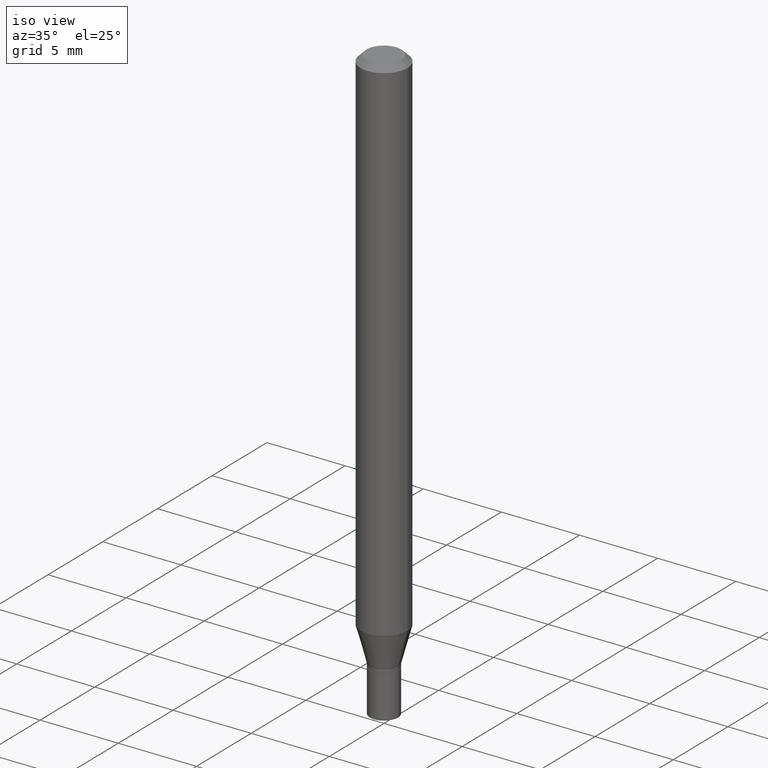
[diagram: clean part render]
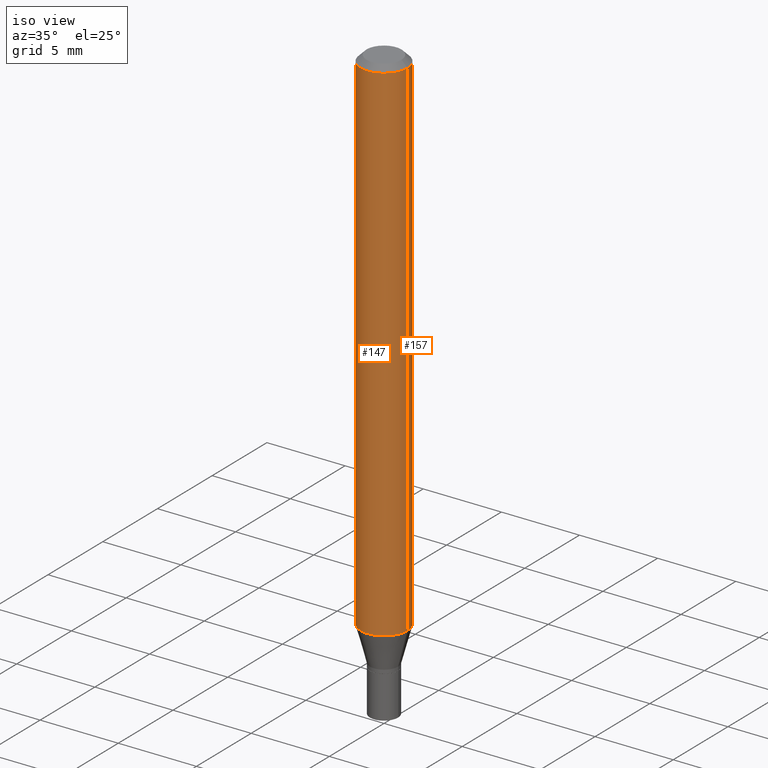
[diagram: same view with one multi-face feature highlighted, each face labeled with its STEP entity id]
A machine part, iso view. The highlighted faces form ONE feature: a constant-radius fillet chain: 2 tangent blend faces with common blend radius 1.4999 mm. The faces share edges in the B-rep.
Their STEP definitions:
[1] entity #147 (Cylinder):
#4 = ORIENTED_EDGE ( 'NONE', *, *, #176, .T. ) ;
#16 = AXIS2_PLACEMENT_3D ( 'NONE', #307, #406, #268 ) ;
#29 = CARTESIAN_POINT ( 'NONE',  ( 3.169140741301243022E-29, -4.524693069253216153E-15, -1.295923600941373044 ) ) ;
#35 = VERTEX_POINT ( 'NONE', #301 ) ;
#39 = EDGE_LOOP ( 'NONE', ( #246, #4, #323, #77 ) ) ;
#43 = VERTEX_POINT ( 'NONE', #125 ) ;
#77 = ORIENTED_EDGE ( 'NONE', *, *, #396, .F. ) ;
#111 = VERTEX_POINT ( 'NONE', #151 ) ;
#117 = CIRCLE ( 'NONE', #16, 0.05904999999999999832 ) ;
#118 = DIRECTION ( 'NONE',  ( -2.445468806185136597E-29, 3.491481338843145583E-15, 1.000000000000000000 ) ) ;
#125 = CARTESIAN_POINT ( 'NONE',  ( 0.05904999999999999832, -4.937037015370589496E-15, -1.295923600941373044 ) ) ;
#126 = VECTOR ( 'NONE', #414, 39.37007874015748143 ) ;
#133 = AXIS2_PLACEMENT_3D ( 'NONE', #439, #118, #191 ) ;
#134 = LINE ( 'NONE', #381, #428 ) ;
#141 = DIRECTION ( 'NONE',  ( -2.445468806185136877E-29, 3.491481338843145188E-15, 1.000000000000000000 ) ) ;
#147 = ADVANCED_FACE ( 'NONE', ( #247 ), #401, .T. ) ;
#151 = CARTESIAN_POINT ( 'NONE',  ( -0.05904999999999999832, -1.868957159201592321E-15, -0.01499999999999999944 ) ) ;
#165 = AXIS2_PLACEMENT_3D ( 'NONE', #29, #272, #421 ) ;
#170 = EDGE_CURVE ( 'NONE', #43, #35, #134, .T. ) ;
#176 = EDGE_CURVE ( 'NONE', #435, #43, #464, .T. ) ;
#191 = DIRECTION ( 'NONE',  ( 1.000000000000000000, -6.982962677686266711E-15, 4.876176775795936353E-29 ) ) ;
#224 = CARTESIAN_POINT ( 'NONE',  ( -0.05904999999999999832, 4.195754854663391478E-16, -2.904631170795521892E-30 ) ) ;
#246 = ORIENTED_EDGE ( 'NONE', *, *, #387, .F. ) ;
#247 = FACE_OUTER_BOUND ( 'NONE', #39, .T. ) ;
#263 = LINE ( 'NONE', #224, #126 ) ;
#268 = DIRECTION ( 'NONE',  ( 1.000000000000000000, -6.982962677686266711E-15, 0.000000000000000000 ) ) ;
#272 = DIRECTION ( 'NONE',  ( -2.445468806185136597E-29, 3.491481338843145583E-15, 1.000000000000000000 ) ) ;
#296 = CARTESIAN_POINT ( 'NONE',  ( -0.05904999999999999832, -4.105117583786875872E-15, -1.295923600941373044 ) ) ;
#301 = CARTESIAN_POINT ( 'NONE',  ( 0.05904999999999999832, -4.647161662000212105E-16, -0.01499999999999999944 ) ) ;
#307 = CARTESIAN_POINT ( 'NONE',  ( 3.668203209277705088E-31, -5.237222008264718399E-17, -0.01499999999999999944 ) ) ;
#323 = ORIENTED_EDGE ( 'NONE', *, *, #170, .T. ) ;
#381 = CARTESIAN_POINT ( 'NONE',  ( 0.05904999999999999832, -4.123439461173740327E-16, 2.879382386107500220E-30 ) ) ;
#387 = EDGE_CURVE ( 'NONE', #435, #111, #263, .T. ) ;
#396 = EDGE_CURVE ( 'NONE', #111, #35, #117, .T. ) ;
#401 = CYLINDRICAL_SURFACE ( 'NONE', #133, 0.05904999999999999832 ) ;
#406 = DIRECTION ( 'NONE',  ( -2.445468806185136597E-29, 3.491481338843145583E-15, 1.000000000000000000 ) ) ;
#414 = DIRECTION ( 'NONE',  ( -2.445468806185136877E-29, 3.491481338843145188E-15, 1.000000000000000000 ) ) ;
#421 = DIRECTION ( 'NONE',  ( 1.000000000000000000, -6.982962677686273021E-15, 0.000000000000000000 ) ) ;
#428 = VECTOR ( 'NONE', #141, 39.37007874015748143 ) ;
#435 = VERTEX_POINT ( 'NONE', #296 ) ;
#439 = CARTESIAN_POINT ( 'NONE',  ( 0.000000000000000000, 0.000000000000000000, 0.000000000000000000 ) ) ;
#464 = CIRCLE ( 'NONE', #165, 0.05904999999999999832 ) ;
[2] entity #157 (Cylinder):
#7 = ORIENTED_EDGE ( 'NONE', *, *, #379, .F. ) ;
#35 = VERTEX_POINT ( 'NONE', #301 ) ;
#43 = VERTEX_POINT ( 'NONE', #125 ) ;
#57 = EDGE_CURVE ( 'NONE', #43, #435, #452, .T. ) ;
#59 = CARTESIAN_POINT ( 'NONE',  ( 3.668203209277705088E-31, -5.237222008264718399E-17, -0.01499999999999999944 ) ) ;
#65 = FACE_OUTER_BOUND ( 'NONE', #348, .T. ) ;
#68 = AXIS2_PLACEMENT_3D ( 'NONE', #309, #199, #229 ) ;
#111 = VERTEX_POINT ( 'NONE', #151 ) ;
#125 = CARTESIAN_POINT ( 'NONE',  ( 0.05904999999999999832, -4.937037015370589496E-15, -1.295923600941373044 ) ) ;
#126 = VECTOR ( 'NONE', #414, 39.37007874015748143 ) ;
#134 = LINE ( 'NONE', #381, #428 ) ;
#141 = DIRECTION ( 'NONE',  ( -2.445468806185136877E-29, 3.491481338843145188E-15, 1.000000000000000000 ) ) ;
#151 = CARTESIAN_POINT ( 'NONE',  ( -0.05904999999999999832, -1.868957159201592321E-15, -0.01499999999999999944 ) ) ;
#154 = AXIS2_PLACEMENT_3D ( 'NONE', #59, #410, #254 ) ;
#156 = DIRECTION ( 'NONE',  ( 1.000000000000000000, -6.982962677686273021E-15, 0.000000000000000000 ) ) ;
#157 = ADVANCED_FACE ( 'NONE', ( #65 ), #465, .T. ) ;
#170 = EDGE_CURVE ( 'NONE', #43, #35, #134, .T. ) ;
#199 = DIRECTION ( 'NONE',  ( -2.445468806185136597E-29, 3.491481338843145583E-15, 1.000000000000000000 ) ) ;
#215 = CARTESIAN_POINT ( 'NONE',  ( 3.169140741301243022E-29, -4.524693069253216153E-15, -1.295923600941373044 ) ) ;
#224 = CARTESIAN_POINT ( 'NONE',  ( -0.05904999999999999832, 4.195754854663391478E-16, -2.904631170795521892E-30 ) ) ;
#229 = DIRECTION ( 'NONE',  ( 1.000000000000000000, -6.982962677686266711E-15, 4.876176775795936353E-29 ) ) ;
#254 = DIRECTION ( 'NONE',  ( 1.000000000000000000, -6.982962677686266711E-15, 0.000000000000000000 ) ) ;
#258 = DIRECTION ( 'NONE',  ( -2.445468806185136597E-29, 3.491481338843145583E-15, 1.000000000000000000 ) ) ;
#263 = LINE ( 'NONE', #224, #126 ) ;
#284 = ORIENTED_EDGE ( 'NONE', *, *, #170, .F. ) ;
#287 = CIRCLE ( 'NONE', #154, 0.05904999999999999832 ) ;
#296 = CARTESIAN_POINT ( 'NONE',  ( -0.05904999999999999832, -4.105117583786875872E-15, -1.295923600941373044 ) ) ;
#301 = CARTESIAN_POINT ( 'NONE',  ( 0.05904999999999999832, -4.647161662000212105E-16, -0.01499999999999999944 ) ) ;
#304 = ORIENTED_EDGE ( 'NONE', *, *, #387, .T. ) ;
#309 = CARTESIAN_POINT ( 'NONE',  ( 0.000000000000000000, 0.000000000000000000, 0.000000000000000000 ) ) ;
#313 = ORIENTED_EDGE ( 'NONE', *, *, #57, .T. ) ;
#348 = EDGE_LOOP ( 'NONE', ( #313, #304, #7, #284 ) ) ;
#379 = EDGE_CURVE ( 'NONE', #35, #111, #287, .T. ) ;
#381 = CARTESIAN_POINT ( 'NONE',  ( 0.05904999999999999832, -4.123439461173740327E-16, 2.879382386107500220E-30 ) ) ;
#387 = EDGE_CURVE ( 'NONE', #435, #111, #263, .T. ) ;
#410 = DIRECTION ( 'NONE',  ( -2.445468806185136597E-29, 3.491481338843145583E-15, 1.000000000000000000 ) ) ;
#414 = DIRECTION ( 'NONE',  ( -2.445468806185136877E-29, 3.491481338843145188E-15, 1.000000000000000000 ) ) ;
#428 = VECTOR ( 'NONE', #141, 39.37007874015748143 ) ;
#435 = VERTEX_POINT ( 'NONE', #296 ) ;
#437 = AXIS2_PLACEMENT_3D ( 'NONE', #215, #258, #156 ) ;
#452 = CIRCLE ( 'NONE', #437, 0.05904999999999999832 ) ;
#465 = CYLINDRICAL_SURFACE ( 'NONE', #68, 0.05904999999999999832 ) ;